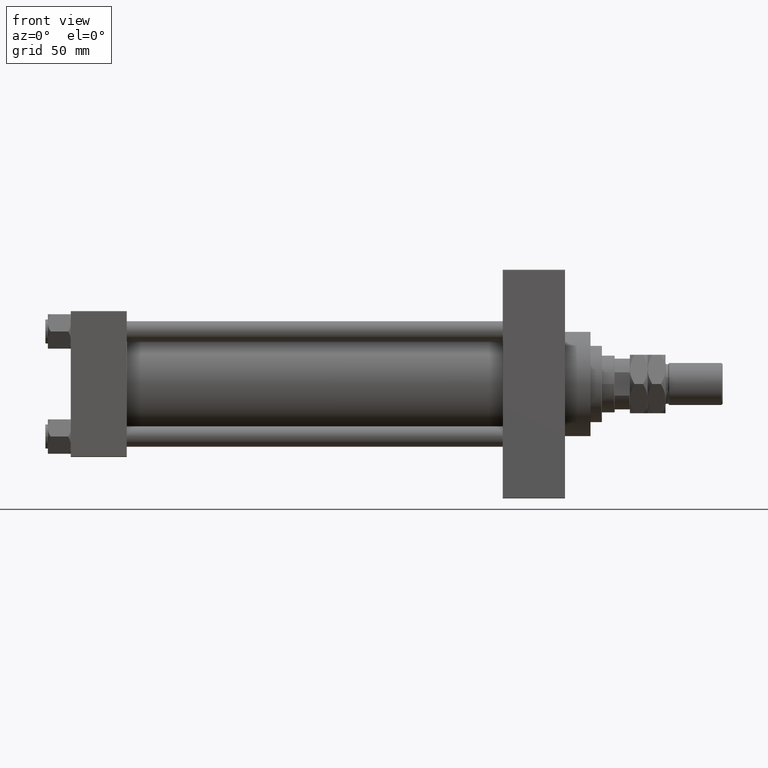
[diagram: clean part render]
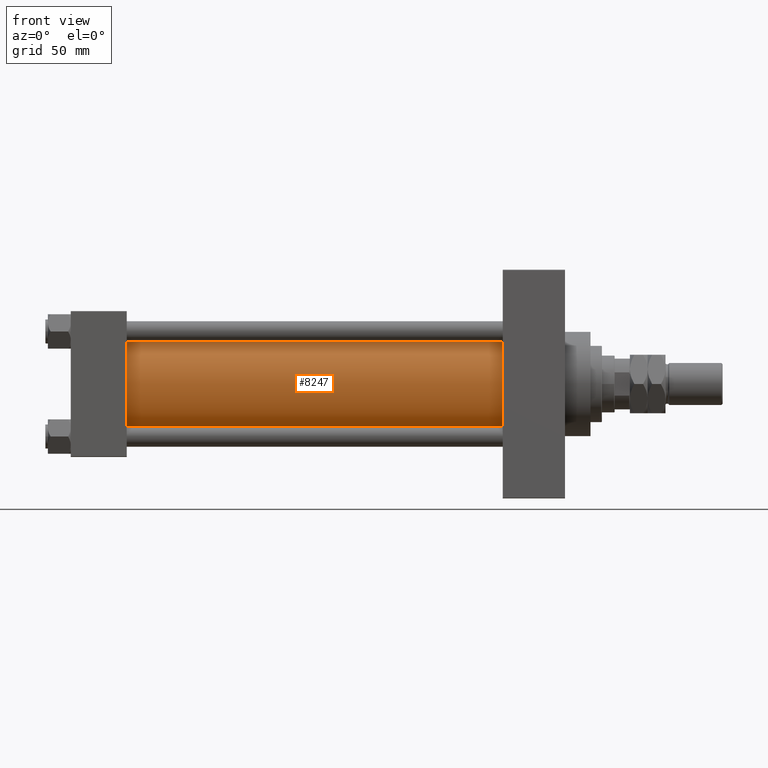
[diagram: same view with one face highlighted and labeled with its STEP entity id]
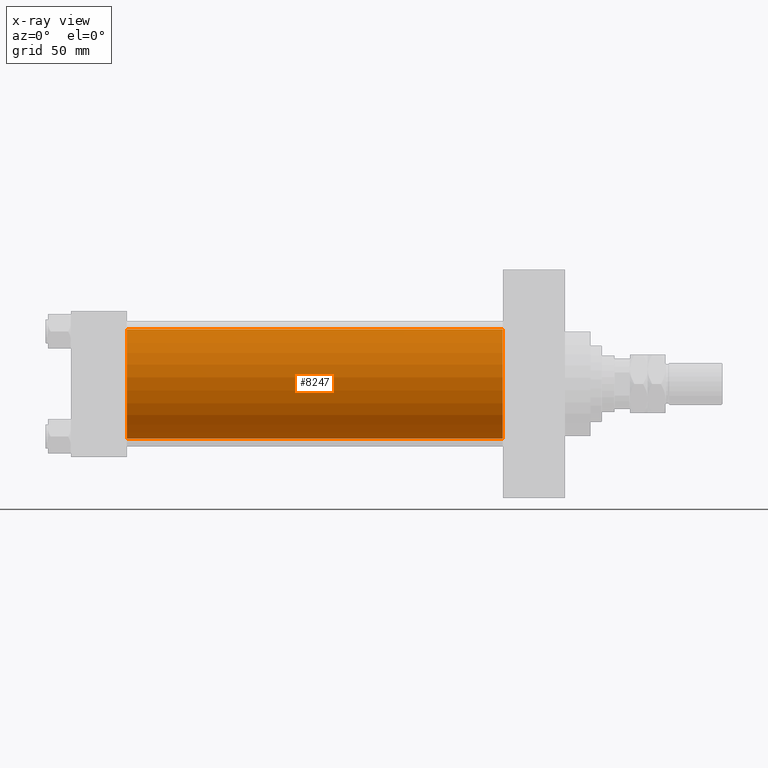
[diagram: x-ray of the same camera — body ghosted, the highlighted face saturated]
A machine part, front view. The second image highlights one B-rep face of the part: STEP entity #8247.
The next image is the same camera in x-ray: the body ghosted, the highlighted face saturated — about 0% of this face is hidden behind the body in this view.
In plain terms, the highlighted cylindrical surface (partial cylindrical patch) has radius 43 mm, axis along (-1, -0, -0).
Its self-contained STEP definition (entity closure, byte-faithful):
#131 = EDGE_LOOP ( 'NONE', ( #49750, #35309, #49335, #13414 ) ) ;
#5119 = AXIS2_PLACEMENT_3D ( 'NONE', #26153, #21471, #6103 ) ;
#5710 = CARTESIAN_POINT ( 'NONE',  ( 339.9999999999999432, -2.602085213965210642E-15, 43.00000000000000000 ) ) ;
#5763 = LINE ( 'NONE', #21653, #16522 ) ;
#6103 = DIRECTION ( 'NONE',  ( 0.000000000000000000, 0.000000000000000000, -1.000000000000000000 ) ) ;
#8247 = ADVANCED_FACE ( 'NONE', ( #30355 ), #23063, .T. ) ;
#9343 = DIRECTION ( 'NONE',  ( 1.000000000000000000, -0.000000000000000000, 0.000000000000000000 ) ) ;
#11090 = CARTESIAN_POINT ( 'NONE',  ( 339.9999999999999432, -2.602085213965210642E-15, 0.000000000000000000 ) ) ;
#12522 = CARTESIAN_POINT ( 'NONE',  ( 43.99999999999998579, 2.663896022368408223E-15, -43.00000000000000000 ) ) ;
#12533 = AXIS2_PLACEMENT_3D ( 'NONE', #29387, #9343, #13783 ) ;
#13414 = ORIENTED_EDGE ( 'NONE', *, *, #39563, .T. ) ;
#13783 = DIRECTION ( 'NONE',  ( 0.000000000000000000, 0.000000000000000000, 1.000000000000000000 ) ) ;
#13881 = VERTEX_POINT ( 'NONE', #23510 ) ;
#16522 = VECTOR ( 'NONE', #21388, 1000.000000000000000 ) ;
#18220 = DIRECTION ( 'NONE',  ( -1.000000000000000000, -0.000000000000000000, -0.000000000000000000 ) ) ;
#21388 = DIRECTION ( 'NONE',  ( -1.000000000000000000, -0.000000000000000000, -0.000000000000000000 ) ) ;
#21471 = DIRECTION ( 'NONE',  ( 1.000000000000000000, 0.000000000000000000, 0.000000000000000000 ) ) ;
#21653 = CARTESIAN_POINT ( 'NONE',  ( 339.9999999999999432, 2.663896022368408223E-15, -43.00000000000000000 ) ) ;
#22112 = LINE ( 'NONE', #5710, #28176 ) ;
#23063 = CYLINDRICAL_SURFACE ( 'NONE', #35640, 43.00000000000000000 ) ;
#23510 = CARTESIAN_POINT ( 'NONE',  ( 339.9999999999999432, 2.663896022368408223E-15, -43.00000000000000000 ) ) ;
#25426 = CARTESIAN_POINT ( 'NONE',  ( 43.99999999999998579, -2.602085213965210642E-15, 43.00000000000000000 ) ) ;
#26153 = CARTESIAN_POINT ( 'NONE',  ( 339.9999999999999432, -2.602085213965210642E-15, 0.000000000000000000 ) ) ;
#28176 = VECTOR ( 'NONE', #18220, 1000.000000000000000 ) ;
#29387 = CARTESIAN_POINT ( 'NONE',  ( 43.99999999999998579, -2.602085213965210642E-15, 0.000000000000000000 ) ) ;
#30355 = FACE_OUTER_BOUND ( 'NONE', #131, .T. ) ;
#31969 = EDGE_CURVE ( 'NONE', #13881, #41662, #5763, .T. ) ;
#32952 = EDGE_CURVE ( 'NONE', #40909, #42902, #22112, .T. ) ;
#34518 = DIRECTION ( 'NONE',  ( 0.000000000000000000, 0.000000000000000000, 1.000000000000000000 ) ) ;
#35309 = ORIENTED_EDGE ( 'NONE', *, *, #45092, .F. ) ;
#35640 = AXIS2_PLACEMENT_3D ( 'NONE', #11090, #42835, #34518 ) ;
#36893 = CARTESIAN_POINT ( 'NONE',  ( 339.9999999999999432, -2.602085213965210642E-15, 43.00000000000000000 ) ) ;
#39563 = EDGE_CURVE ( 'NONE', #42902, #41662, #44115, .T. ) ;
#40909 = VERTEX_POINT ( 'NONE', #36893 ) ;
#41662 = VERTEX_POINT ( 'NONE', #12522 ) ;
#42835 = DIRECTION ( 'NONE',  ( -1.000000000000000000, -0.000000000000000000, -0.000000000000000000 ) ) ;
#42902 = VERTEX_POINT ( 'NONE', #25426 ) ;
#44115 = CIRCLE ( 'NONE', #12533, 43.00000000000000000 ) ;
#45092 = EDGE_CURVE ( 'NONE', #40909, #13881, #47525, .T. ) ;
#47525 = CIRCLE ( 'NONE', #5119, 43.00000000000000000 ) ;
#49335 = ORIENTED_EDGE ( 'NONE', *, *, #32952, .T. ) ;
#49750 = ORIENTED_EDGE ( 'NONE', *, *, #31969, .F. ) ;